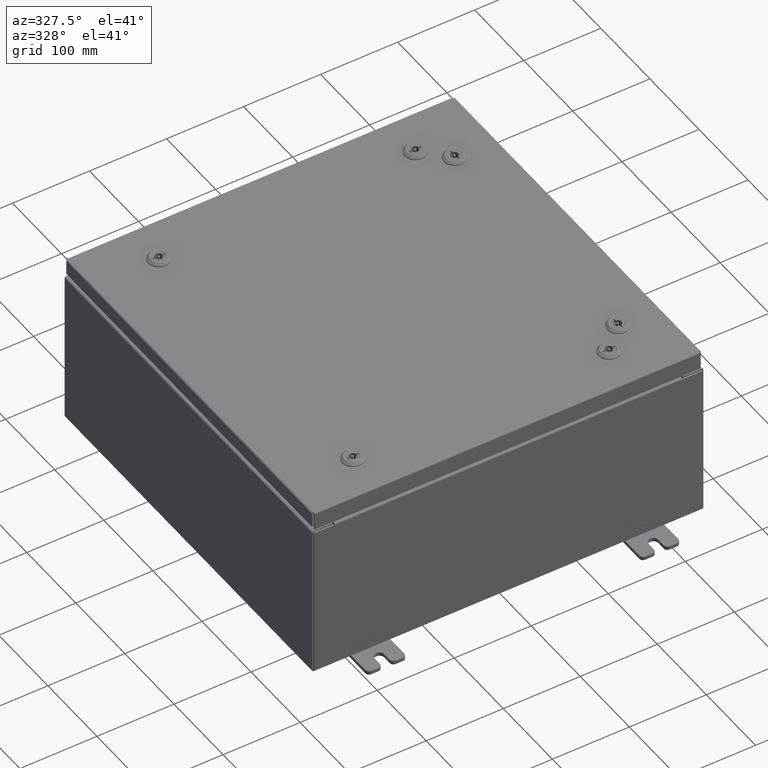
[diagram: clean part render]
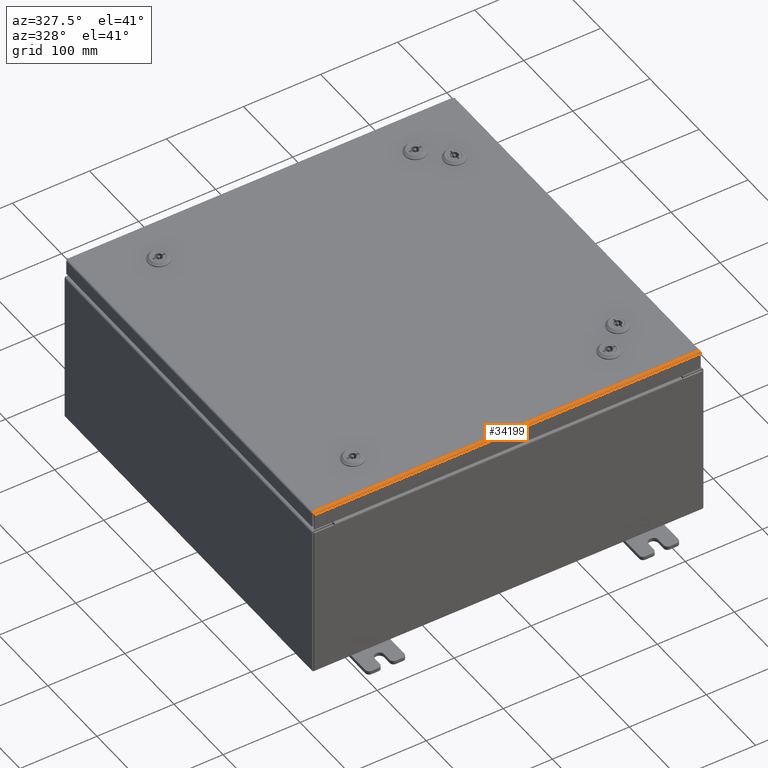
[diagram: same view with one face highlighted and labeled with its STEP entity id]
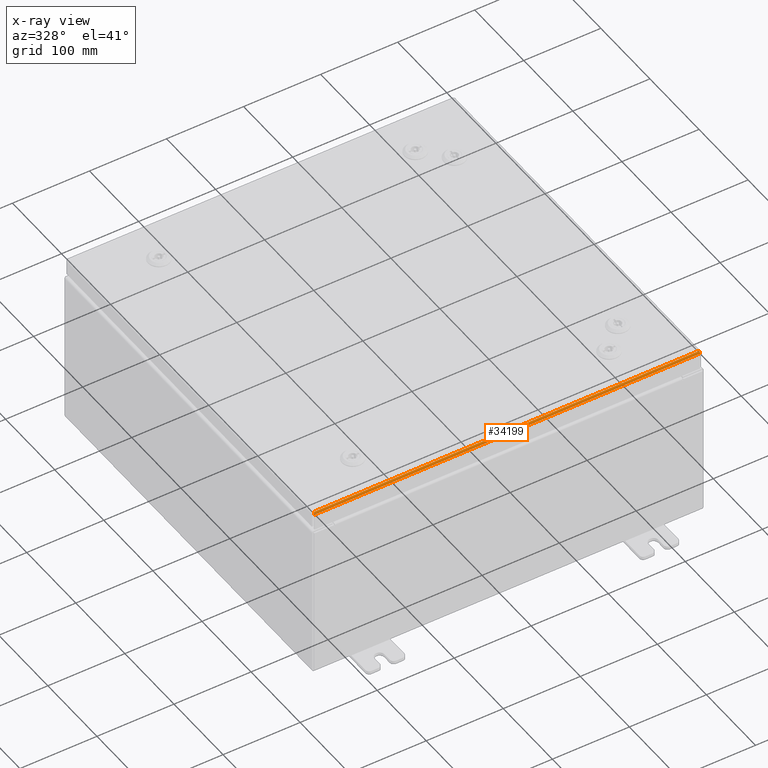
[diagram: x-ray of the same camera — body ghosted, the highlighted face saturated]
A machine part, auxiliary view. The second image highlights one B-rep face of the part: STEP entity #34199.
The next image is the same camera in x-ray: the body ghosted, the highlighted face saturated — about 0% of this face is hidden behind the body in this view.
In plain terms, the highlighted cylindrical surface (edge-blend (fillet) strip) has radius 2.2276 mm, axis along (-1, 0, 0).
Its self-contained STEP definition (entity closure, byte-faithful):
#453 = CARTESIAN_POINT ( 'NONE',  ( -9.849704822031354100, -9.861279903154994000, -2.045551219865306400E-016 ) ) ;
#1525 = CARTESIAN_POINT ( 'NONE',  ( 9.848753042344910100, -9.937500000000001800, -0.07622009684500739800 ) ) ;
#4047 = EDGE_LOOP ( 'NONE', ( #19579, #52685, #56686, #60375 ) ) ;
#6205 = CARTESIAN_POINT ( 'NONE',  ( 9.849704822031352300, -9.861279903154994000, -2.046885130018462200E-016 ) ) ;
#7923 = VECTOR ( 'NONE', #61889, 39.37007874015748100 ) ;
#10014 = DIRECTION ( 'NONE',  ( 1.000000000000000000, -0.0000000000000000000, -0.0000000000000000000 ) ) ;
#10988 = LINE ( 'NONE', #37255, #7923 ) ;
#14448 = CARTESIAN_POINT ( 'NONE',  ( 9.848657864376264100, -9.937500000000001800, -0.08770000000000008300 ) ) ;
#15014 = CARTESIAN_POINT ( 'NONE',  ( -9.848753042344910100, -9.937500000000000000, -0.07622009684500737100 ) ) ;
#19579 = ORIENTED_EDGE ( 'NONE', *, *, #40063, .F. ) ;
#19943 = CARTESIAN_POINT ( 'NONE',  ( -9.849038576250842800, -9.926431066258668800, -0.04353261542147224300 ) ) ;
#21011 = CARTESIAN_POINT ( 'NONE',  ( 9.849419288125419700, -9.893967384578529000, -0.01106893374133176300 ) ) ;
#24891 = CARTESIAN_POINT ( 'NONE',  ( -9.849324110156771900, -9.903695747341799900, -0.01756921792167977900 ) ) ;
#25946 = CARTESIAN_POINT ( 'NONE',  ( 9.849133754219485200, -9.919930782078324700, -0.03380425265820010500 ) ) ;
#26646 = DIRECTION ( 'NONE',  ( -1.000000000000000000, 0.0000000000000000000, 0.0000000000000000000 ) ) ;
#26856 = DIRECTION ( 'NONE',  ( 0.0000000000000000000, -1.000000000000000000, 2.530931008953486200E-015 ) ) ;
#27002 = AXIS2_PLACEMENT_3D ( 'NONE', #46394, #26646, #26856 ) ;
#29277 = B_SPLINE_CURVE_WITH_KNOTS ( 'NONE', 3,
 ( #44424, #15014, #49347, #19943, #54273, #24891, #59208, #29805, #453, #34739 ),
 .UNSPECIFIED., .F., .F.,
 ( 4, 2, 2, 2, 4 ),
 ( 0.0000000000000000000, 0.2500000000000000000, 0.5000000000000000000, 0.7500000000000000000, 1.000000000000000000 ),
 .UNSPECIFIED. ) ;
#29805 = CARTESIAN_POINT ( 'NONE',  ( -9.849609644062709900, -9.872755289458309500, -0.002282596256188921700 ) ) ;
#30873 = CARTESIAN_POINT ( 'NONE',  ( 9.848848220313550800, -9.935217403743813200, -0.06474471054169124400 ) ) ;
#31552 = CARTESIAN_POINT ( 'NONE',  ( 9.849799999999996600, -9.849800000000001900, -2.048885995248197400E-016 ) ) ;
#32777 = VERTEX_POINT ( 'NONE', #31552 ) ;
#34199 = ADVANCED_FACE ( 'NONE', ( #46784 ), #45220, .T. ) ;
#34377 = VERTEX_POINT ( 'NONE', #47453 ) ;
#34739 = CARTESIAN_POINT ( 'NONE',  ( -9.849799999999996600, -9.849800000000001900, -2.048885995248197400E-016 ) ) ;
#35602 = CARTESIAN_POINT ( 'NONE',  ( 9.849799999999996600, -9.849800000000001900, -2.048885995248197400E-016 ) ) ;
#35811 = CARTESIAN_POINT ( 'NONE',  ( 9.848657864376264100, -9.937500000000001800, -0.08770000000000008300 ) ) ;
#37255 = CARTESIAN_POINT ( 'NONE',  ( 9.937499999999998200, -9.937500000000001800, -0.08770000000000008300 ) ) ;
#37331 = LINE ( 'NONE', #49266, #61863 ) ;
#39219 = B_SPLINE_CURVE_WITH_KNOTS ( 'NONE', 3,
 ( #35602, #6205, #50402, #21011, #55336, #25946, #60263, #30873, #1525, #35811 ),
 .UNSPECIFIED., .F., .F.,
 ( 4, 2, 2, 2, 4 ),
 ( 0.0000000000000000000, 0.2500000000000000000, 0.5000000000000000000, 0.7500000000000000000, 1.000000000000000000 ),
 .UNSPECIFIED. ) ;
#40063 = EDGE_CURVE ( 'NONE', #40566, #32777, #37331, .T. ) ;
#40566 = VERTEX_POINT ( 'NONE', #62008 ) ;
#44424 = CARTESIAN_POINT ( 'NONE',  ( -9.848657864376264100, -9.937500000000001800, -0.08770000000000008300 ) ) ;
#44553 = EDGE_CURVE ( 'NONE', #32777, #53808, #39219, .T. ) ;
#45220 = CYLINDRICAL_SURFACE ( 'NONE', #27002, 0.08770000000000026400 ) ;
#46394 = CARTESIAN_POINT ( 'NONE',  ( -9.849799999999996600, -9.849800000000001900, -0.08770000000000030500 ) ) ;
#46784 = FACE_OUTER_BOUND ( 'NONE', #4047, .T. ) ;
#47453 = CARTESIAN_POINT ( 'NONE',  ( -9.848657864376264100, -9.937500000000001800, -0.08770000000000008300 ) ) ;
#49266 = CARTESIAN_POINT ( 'NONE',  ( -9.849799999999996600, -9.849800000000001900, -2.048885995248197400E-016 ) ) ;
#49347 = CARTESIAN_POINT ( 'NONE',  ( -9.848848220313552600, -9.935217403743813200, -0.06474471054169123100 ) ) ;
#50402 = CARTESIAN_POINT ( 'NONE',  ( 9.849609644062713400, -9.872755289458313000, -0.002282596256188922100 ) ) ;
#52685 = ORIENTED_EDGE ( 'NONE', *, *, #62478, .F. ) ;
#53566 = EDGE_CURVE ( 'NONE', #34377, #53808, #10988, .T. ) ;
#53808 = VERTEX_POINT ( 'NONE', #14448 ) ;
#54273 = CARTESIAN_POINT ( 'NONE',  ( -9.849133754219488800, -9.919930782078322900, -0.03380425265820010500 ) ) ;
#55336 = CARTESIAN_POINT ( 'NONE',  ( 9.849324110156775400, -9.903695747341801700, -0.01756921792167977900 ) ) ;
#56686 = ORIENTED_EDGE ( 'NONE', *, *, #53566, .T. ) ;
#59208 = CARTESIAN_POINT ( 'NONE',  ( -9.849419288125421400, -9.893967384578530800, -0.01106893374133176300 ) ) ;
#60263 = CARTESIAN_POINT ( 'NONE',  ( 9.849038576250842800, -9.926431066258670600, -0.04353261542147225700 ) ) ;
#60375 = ORIENTED_EDGE ( 'NONE', *, *, #44553, .F. ) ;
#61863 = VECTOR ( 'NONE', #10014, 39.37007874015748100 ) ;
#61889 = DIRECTION ( 'NONE',  ( 1.000000000000000000, 3.132763603081818100E-031, -7.843572268217993600E-046 ) ) ;
#62008 = CARTESIAN_POINT ( 'NONE',  ( -9.849799999999996600, -9.849800000000001900, -2.048885995248197400E-016 ) ) ;
#62478 = EDGE_CURVE ( 'NONE', #34377, #40566, #29277, .T. ) ;